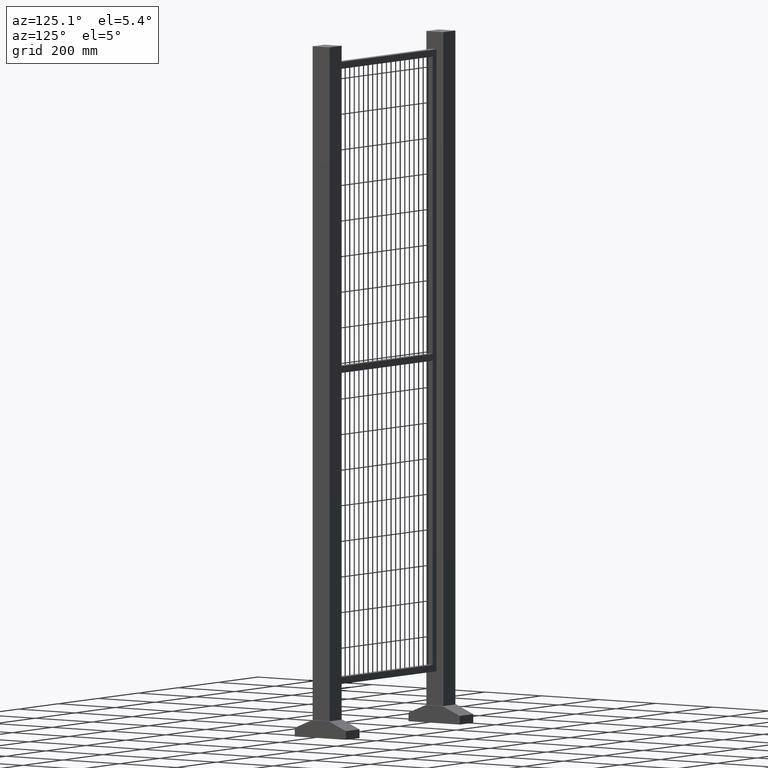
[diagram: clean part render]
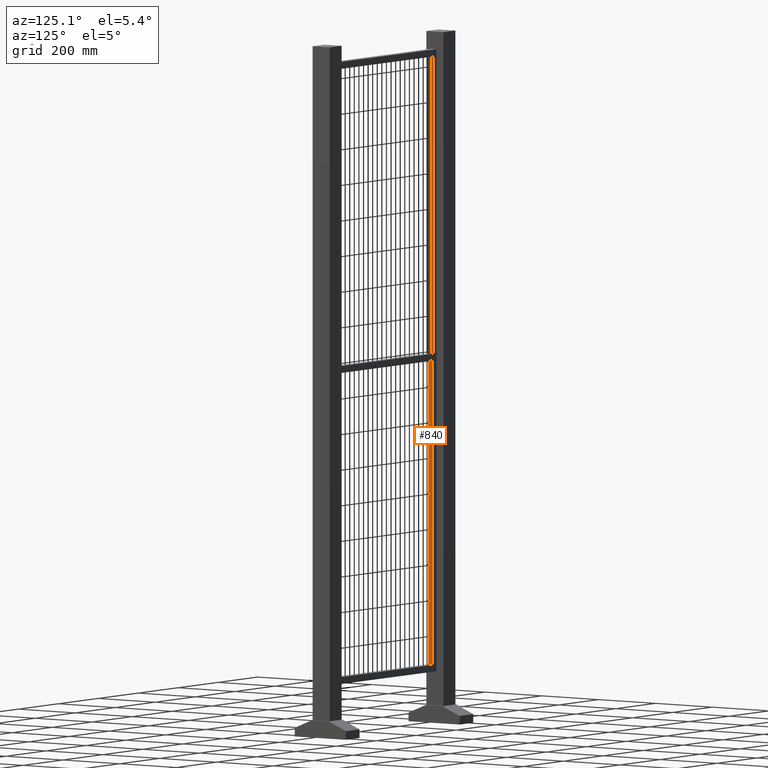
[diagram: same view with one face highlighted and labeled with its STEP entity id]
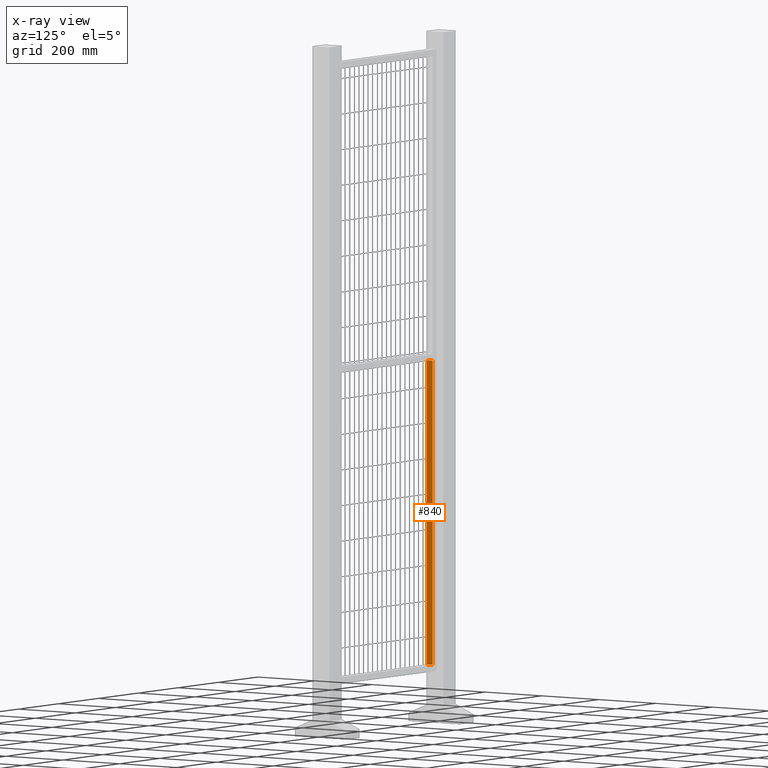
[diagram: x-ray of the same camera — body ghosted, the highlighted face saturated]
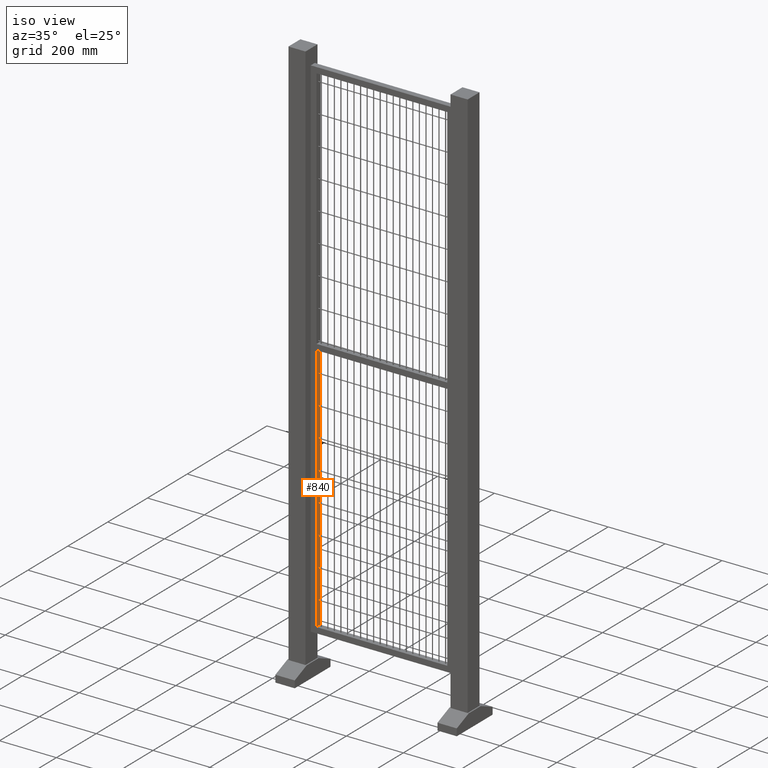
[diagram: same view with one face highlighted and labeled with its STEP entity id]
A machine part, auxiliary view. The second image highlights one B-rep face of the part: STEP entity #840.
The next image is the same camera in x-ray: the body ghosted, the highlighted face saturated — about 0% of this face is hidden behind the body in this view.
A second angle (iso view) of the same face is appended — the face is thin or edge-on in the first view.
In plain terms, the highlighted planar face has unit normal (1, 0, -0).
Its self-contained STEP definition (entity closure, byte-faithful):
#67=LINE('',#2982,#161);
#75=LINE('',#3000,#169);
#76=LINE('',#3003,#170);
#77=LINE('',#3004,#171);
#161=VECTOR('',#2413,1.);
#169=VECTOR('',#2429,1.);
#170=VECTOR('',#2430,1.);
#171=VECTOR('',#2431,1.);
#616=PLANE('',#2130);
#724=FACE_OUTER_BOUND('',#1146,.T.);
#840=ADVANCED_FACE('',(#724),#616,.T.);
#1146=EDGE_LOOP('',(#1367,#1368,#1369,#1370));
#1367=ORIENTED_EDGE('',*,*,#1858,.F.);
#1368=ORIENTED_EDGE('',*,*,#1859,.T.);
#1369=ORIENTED_EDGE('',*,*,#1849,.T.);
#1370=ORIENTED_EDGE('',*,*,#1860,.F.);
#1702=VERTEX_POINT('',#2981);
#1703=VERTEX_POINT('',#2983);
#1709=VERTEX_POINT('',#3001);
#1710=VERTEX_POINT('',#3002);
#1849=EDGE_CURVE('',#1703,#1702,#67,.T.);
#1858=EDGE_CURVE('',#1709,#1710,#75,.T.);
#1859=EDGE_CURVE('',#1709,#1703,#76,.T.);
#1860=EDGE_CURVE('',#1710,#1702,#77,.T.);
#2130=AXIS2_PLACEMENT_3D('',#3005,#2432,#2433);
#2413=DIRECTION('',(0.,1.,0.));
#2429=DIRECTION('',(0.,1.,0.));
#2430=DIRECTION('',(-6.30808536718839E-17,0.,-1.));
#2431=DIRECTION('',(-6.30808536718839E-17,0.,-1.));
#2432=DIRECTION('',(1.,0.,-6.30808536718839E-17));
#2433=DIRECTION('',(-5.55111512312578E-17,0.,-1.));
#2981=CARTESIAN_POINT('',(-230.,10.,-880.));
#2982=CARTESIAN_POINT('',(-230.,-10.,-880.));
#2983=CARTESIAN_POINT('',(-230.,-10.,-880.));
#3000=CARTESIAN_POINT('',(-230.,-10.,0.));
#3001=CARTESIAN_POINT('',(-230.,-10.,0.));
#3002=CARTESIAN_POINT('',(-230.,10.,0.));
#3003=CARTESIAN_POINT('',(-230.,-10.,880.));
#3004=CARTESIAN_POINT('',(-230.,10.,880.));
#3005=CARTESIAN_POINT('',(-230.,-10.,880.));